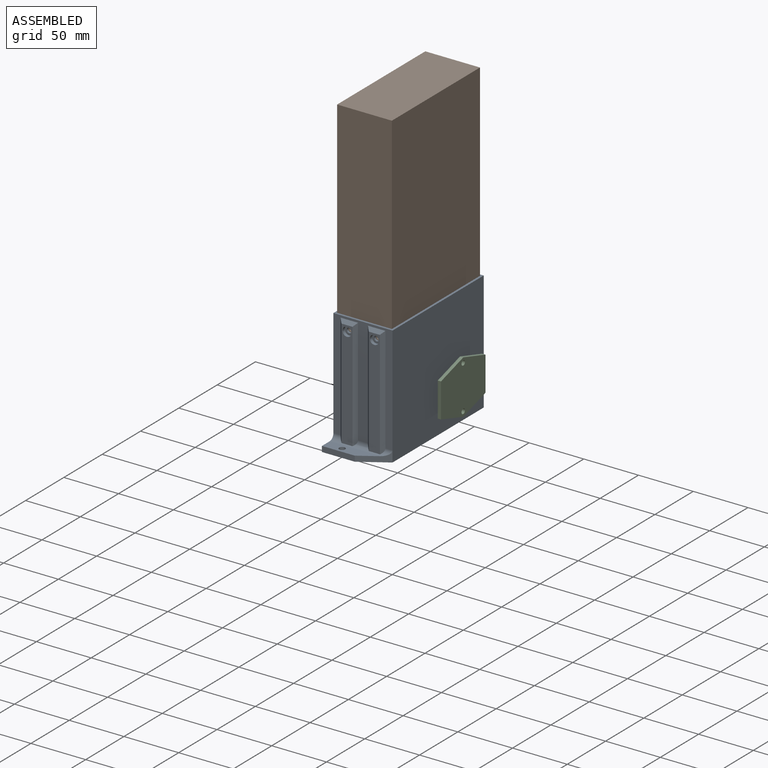
[diagram: assembled view]
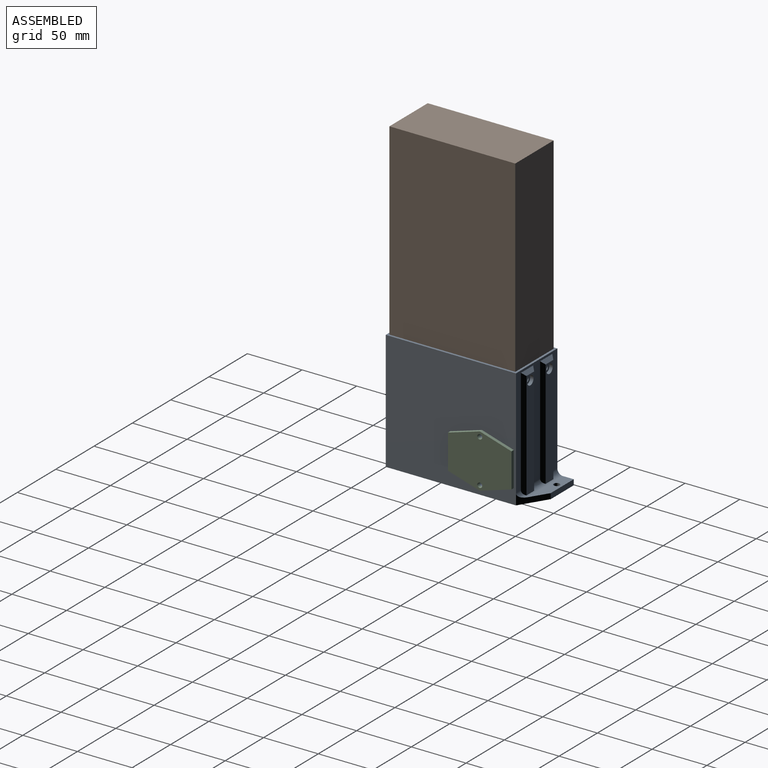
[diagram: assembled view, second angle]
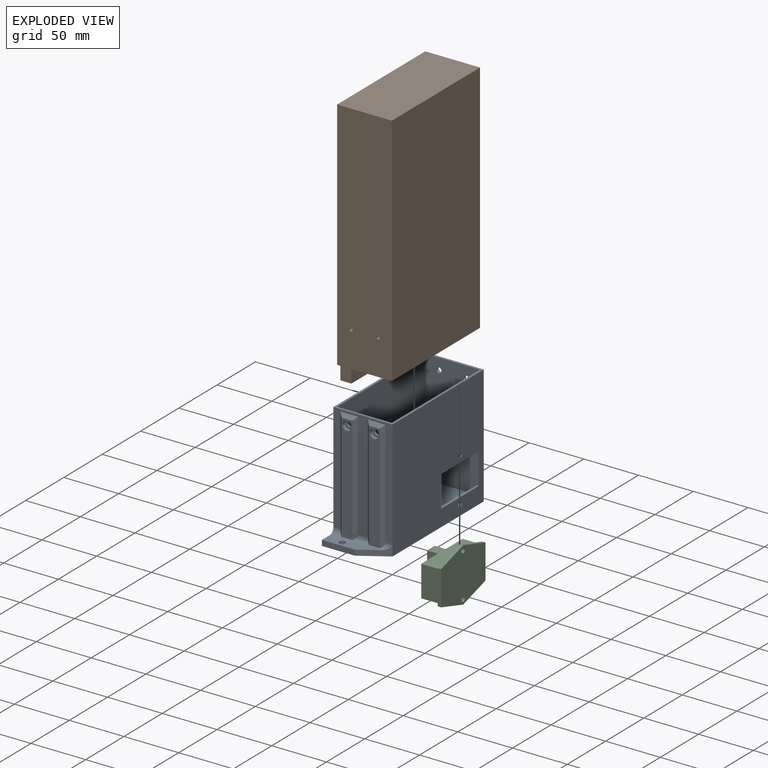
[diagram: exploded view]
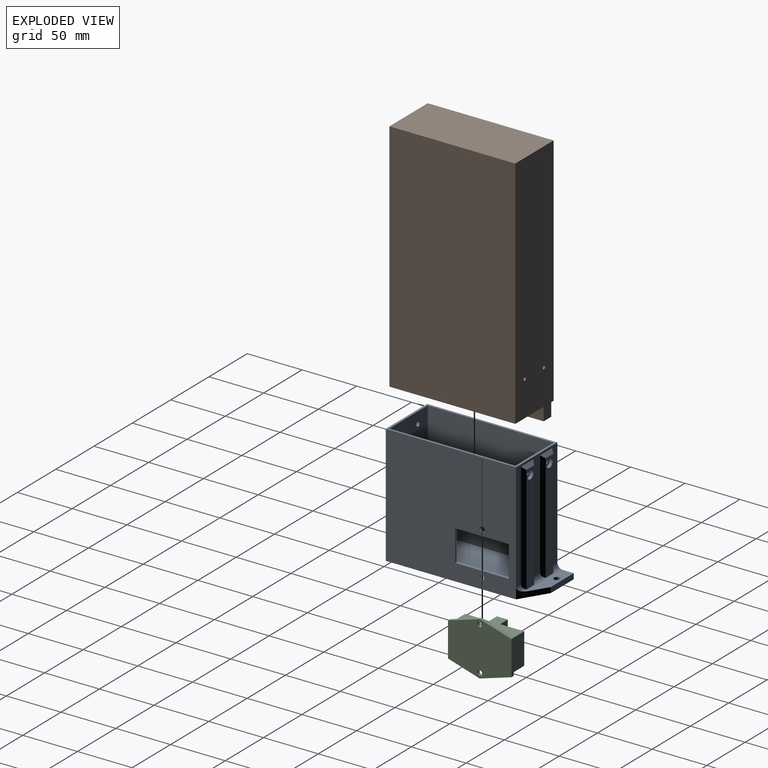
[diagram: exploded view, second angle]
ASSEMBLY  parts=3 mates=2
PART A: 55 faces, bbox 54x149x109 mm
  f0: plane 46x10mm, normal (0,0,1), area 356.2mm2, adj f14,f18,f22,f46,f48
  f1: plane 8.25x8.25mm, normal (0,1,0), area 37.6mm2, adj f32,f36
  f2: plane 8.25x8.25mm, normal (0,1,0), area 37.6mm2, adj f33,f37
  f3: plane 16x3mm, normal (0,-0.71,0.71), area 55.2mm2, adj f19,f24,f25,f26
  f4: plane 16x3mm, normal (0,-0.71,0.71), area 55.2mm2, adj f19,f23,f27,f28
  f5: cylinder r=4.12mm len=8.25mm, axis (0,-1,0), area 77.8mm2, adj f24,f35
  f6: cylinder r=4.12mm len=8.25mm, axis (0,-1,0), area 77.8mm2, adj f23,f34
  f7: plane 46x10mm, normal (0,0,1), area 356.2mm2, adj f15,f16,f22,f29,f47
  f8: plane 104x50mm, normal (0,1,0), area 5168.2mm2, adj f9,f11,f12,f13,f30,f31
  f9: plane 115x104mm, normal (-1,0,0), area 11960mm2, adj f8,f10,f12,f13
  f10: plane 104x50mm, normal (0,-1,0), area 5168.2mm2, adj f9,f11,f12,f13,f32,f33
  f11: plane 115x104mm, normal (1,0,0), area 10531.7mm2, adj f8,f10,f12,f13,f49,f50,f51,f52
  f12: plane 115x50mm, normal (0,0,1), area 5750mm2, adj f8,f9,f10,f11
  f13: plane 119x54mm, normal (0,0,1), area 676mm2, adj f8,f9,f10,f11,f19,f20,f21,f22
  f14: plane 30x5mm, normal (0,1,0), area 150mm2, adj f0,f17,f18,f22
  f15: plane 30x5mm, normal (0,-1,0), area 150mm2, adj f7,f16,f17,f22
  f16: plane 24x15mm, normal (-0.53,-0.85,0), area 151.6mm2, adj f7,f15,f17,f20,f29
  f17: plane 149x54mm, normal (0,0,-1), area 7638.5mm2, adj f14,f15,f16,f18,f20,f22,f47,f48
  f18: plane 24x15mm, normal (-0.53,0.85,0), area 151.6mm2, adj f0,f14,f17,f20,f46
  f19: plane 99x54mm, normal (0,-1,0), area 2242mm2, adj f3,f4,f13,f20,f22,f25,f26,f27
  f20: plane 119x109mm, normal (-1,0,0), area 11542.7mm2, adj f13,f16,f17,f18,f19,f21,f49,f50
  f21: plane 99x54mm, normal (0,1,0), area 2242mm2, adj f13,f20,f22,f38,f39,f42,f43,f44
  f22: plane 149x109mm, normal (1,0,0), area 13131.7mm2, adj f0,f7,f13,f14,f15,f17,f19,f21
  f23: plane 98.58x10mm, normal (0,-1,0), area 932.4mm2, adj f4,f6,f27,f28,f29
  f24: plane 98.58x10mm, normal (0,-1,0), area 932.4mm2, adj f3,f5,f25,f26,f29
  f25: plane 101.58x3mm, normal (-0.71,-0.71,0), area 419.2mm2, adj f3,f19,f24,f29
  f26: plane 101.58x3mm, normal (0.71,-0.71,0), area 419.2mm2, adj f3,f19,f24,f29
  f27: plane 101.58x3mm, normal (0.71,-0.71,0), area 419.2mm2, adj f4,f19,f23,f29
  f28: plane 101.58x3mm, normal (-0.71,-0.71,0), area 419.2mm2, adj f4,f19,f23,f29
  f29: cylinder r=5mm len=54mm, axis (-1,0,0), area 240.1mm2, adj f7,f16,f19,f22,f23,f24,f25,f26
  f30: cylinder r=2.25mm len=4.5mm, axis (0,-1,0), area 28.3mm2, adj f8,f35
  f31: cylinder r=2.25mm len=4.5mm, axis (0,-1,0), area 28.3mm2, adj f8,f34
  f32: cylinder r=2.25mm len=4.5mm, axis (0,-1,0), area 28.3mm2, adj f1,f10
  f33: cylinder r=2.25mm len=4.5mm, axis (0,-1,0), area 28.3mm2, adj f2,f10
  f34: plane 8.25x8.25mm, normal (0,-1,0), area 37.6mm2, adj f6,f31
  f35: plane 8.25x8.25mm, normal (0,-1,0), area 37.6mm2, adj f5,f30
  f36: cylinder r=4.12mm len=8.25mm, axis (0,1,0), area 77.8mm2, adj f1,f41
  f37: cylinder r=4.12mm len=8.25mm, axis (0,1,0), area 77.8mm2, adj f2,f40
  f38: plane 16x3mm, normal (0,0.71,0.71), area 55.2mm2, adj f21,f41,f42,f43
  f39: plane 16x3mm, normal (0,0.71,0.71), area 55.2mm2, adj f21,f40,f44,f45
  f40: plane 98.58x10mm, normal (0,1,0), area 932.4mm2, adj f37,f39,f44,f45,f46
  f41: plane 98.58x10mm, normal (0,1,0), area 932.4mm2, adj f36,f38,f42,f43,f46
  f42: plane 101.58x3mm, normal (-0.71,0.71,0), area 419.2mm2, adj f21,f38,f41,f46
  f43: plane 101.58x3mm, normal (0.71,0.71,0), area 419.2mm2, adj f21,f38,f41,f46
  f44: plane 101.58x3mm, normal (0.71,0.71,0), area 419.2mm2, adj f21,f39,f40,f46
  f45: plane 101.58x3mm, normal (-0.71,0.71,0), area 419.2mm2, adj f21,f39,f40,f46
  f46: cylinder r=5mm len=54mm, axis (-1,0,0), area 240.1mm2, adj f0,f18,f21,f22,f40,f41,f42,f43
  f47: cylinder r=2.75mm len=5.5mm, axis (0,0,1), area 86.4mm2, adj f7,f17
  f48: cylinder r=2.75mm len=5.5mm, axis (0,0,1), area 86.4mm2, adj f0,f17
  f49: plane 49x2mm, normal (0,0,-1), area 98mm2, adj f11,f20,f50,f51
  f50: plane 28.5x2mm, normal (0,1,0), area 57mm2, adj f11,f20,f49,f52
  f51: plane 28.5x2mm, normal (0,-1,0), area 57mm2, adj f11,f20,f49,f52
  f52: plane 49x2mm, normal (0,0,1), area 98mm2, adj f11,f20,f50,f51
  f53: cylinder r=2.25mm len=4.5mm, axis (-1,0,0), area 28.3mm2, adj f11,f20
  f54: cylinder r=2.25mm len=4.5mm, axis (-1,0,0), area 28.3mm2, adj f11,f20
PART B: 18 faces, bbox 50x115x227 mm
  f0: plane 115x37mm, normal (0,0,-1), area 4255mm2, adj f2,f3,f10,f15
  f1: plane 215x115mm, normal (-1,0,0), area 24725mm2, adj f2,f4,f5,f10
  f2: plane 227x50mm, normal (0,-1,0), area 10852.9mm2, adj f0,f1,f3,f4,f5,f7,f9,f15
  f3: plane 215x115mm, normal (1,0,0), area 24725mm2, adj f0,f2,f4,f10
  f4: plane 115x50mm, normal (0,0,1), area 5750mm2, adj f1,f2,f3,f10
  f5: plane 115x3mm, normal (0,0,-1), area 345mm2, adj f1,f2,f10,f16
  f6: cone r=0mm half-angle=59deg, axis (0,-1,0), area 10mm2, adj f7
  f7: cylinder r=1.65mm len=5.6mm, axis (0,-1,0), area 58.1mm2, adj f2,f6
  f8: cone r=0mm half-angle=59deg, axis (0,-1,0), area 10mm2, adj f9
  f9: cylinder r=1.65mm len=5.6mm, axis (0,-1,0), area 58.1mm2, adj f2,f8
  f10: plane 227x50mm, normal (0,1,0), area 10852.9mm2, adj f0,f1,f3,f4,f5,f12,f14,f15
  f11: cone r=0mm half-angle=59deg, axis (0,1,0), area 10mm2, adj f12
  f12: cylinder r=1.65mm len=5.6mm, axis (0,1,0), area 58.1mm2, adj f10,f11
  f13: cone r=0mm half-angle=59deg, axis (0,1,0), area 10mm2, adj f14
  f14: cylinder r=1.65mm len=5.6mm, axis (0,1,0), area 58.1mm2, adj f10,f13
  f15: plane 115x12mm, normal (1,0,0), area 1380mm2, adj f0,f2,f10,f17
  f16: plane 115x12mm, normal (-1,0,0), area 1380mm2, adj f2,f5,f10,f17
  f17: plane 115x10mm, normal (0,0,-1), area 1150mm2, adj f2,f10,f15,f16
PART C: 19 faces, bbox 49x29.5x58 mm
  f0: plane 28.5x22mm, normal (0,1,0), area 627mm2, adj f1,f2,f3,f16
  f1: plane 54x26.5mm, normal (1,0,0), area 991mm2, adj f0,f2,f4,f5,f15,f16,f17,f18
  f2: plane 28.5x16.5mm, normal (0,0,1), area 470.2mm2, adj f0,f1,f3,f15
  f3: plane 54x26.5mm, normal (-1,0,0), area 991mm2, adj f0,f2,f4,f5,f15,f16,f17,f18
  f4: plane 28.5x16.5mm, normal (0,0,-1), area 470.2mm2, adj f1,f3,f5,f15
  f5: plane 28.5x22mm, normal (0,1,0), area 627mm2, adj f1,f3,f4,f17
  f6: plane 29x8.77mm, normal (-0.96,0,0.29), area 90.9mm2, adj f7,f12,f14,f15
  f7: plane 29x8.77mm, normal (-0.96,0,-0.29), area 90.9mm2, adj f6,f8,f14,f15
  f8: plane 31.47x3mm, normal (0,0,-1), area 94.4mm2, adj f7,f9,f14,f15
  f9: plane 29x8.77mm, normal (0.96,0,-0.29), area 90.9mm2, adj f8,f10,f14,f15
  f10: plane 29x8.77mm, normal (0.96,0,0.29), area 90.9mm2, adj f9,f12,f14,f15
  f11: cylinder r=2.25mm len=4.5mm, axis (0,1,0), area 42.4mm2, adj f14,f15
  f12: plane 31.47x3mm, normal (0,0,1), area 94.4mm2, adj f6,f10,f14,f15
  f13: cylinder r=2.25mm len=4.5mm, axis (0,1,0), area 42.4mm2, adj f14,f15
  f14: plane 58x49mm, normal (0,-1,0), area 2301.8mm2, adj f6,f7,f8,f9,f10,f11,f12,f13
  f15: plane 58x49mm, normal (0,1,0), area 762.8mm2, adj f1,f2,f3,f4,f6,f7,f8,f9
  f16: plane 28.5x10mm, normal (0,0,1), area 285mm2, adj f0,f1,f3,f18
  f17: plane 28.5x10mm, normal (0,0,-1), area 285mm2, adj f1,f3,f5,f18
  f18: plane 28.5x10mm, normal (0,1,0), area 285mm2, adj f1,f3,f16,f17
PLACE A rot(axis=(0,0,1),180deg) t=(0,0,0)mm
PLACE B at identity fixed
PLACE C rot(axis=(0.58,-0.58,0.58),120deg) t=(27,28.5,-36.5)mm
MATE fastened C.f11 <-> A.f53  axis (-1,0,0) through (27,28.5,-16.5)mm
MATE fastened A.f6 <-> B.f8  axis (0,1,0) through (12.5,-57.5,32.5)mm
